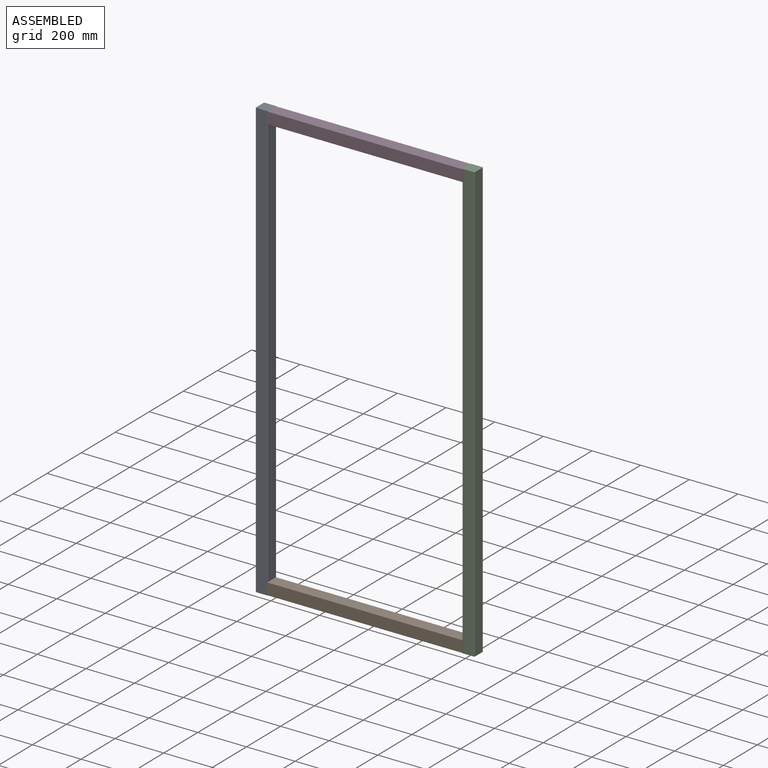
[diagram: assembled view]
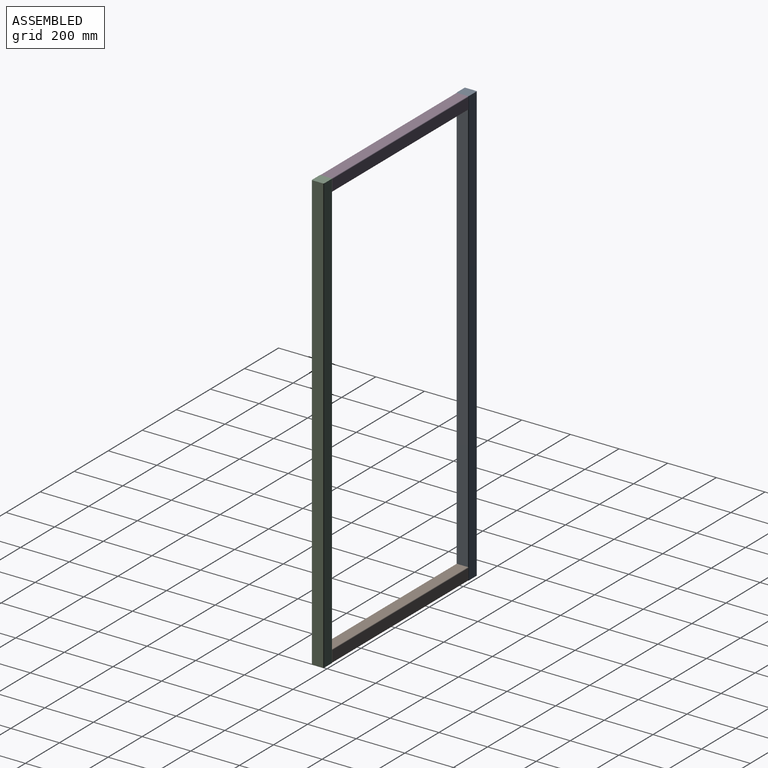
[diagram: assembled view, second angle]
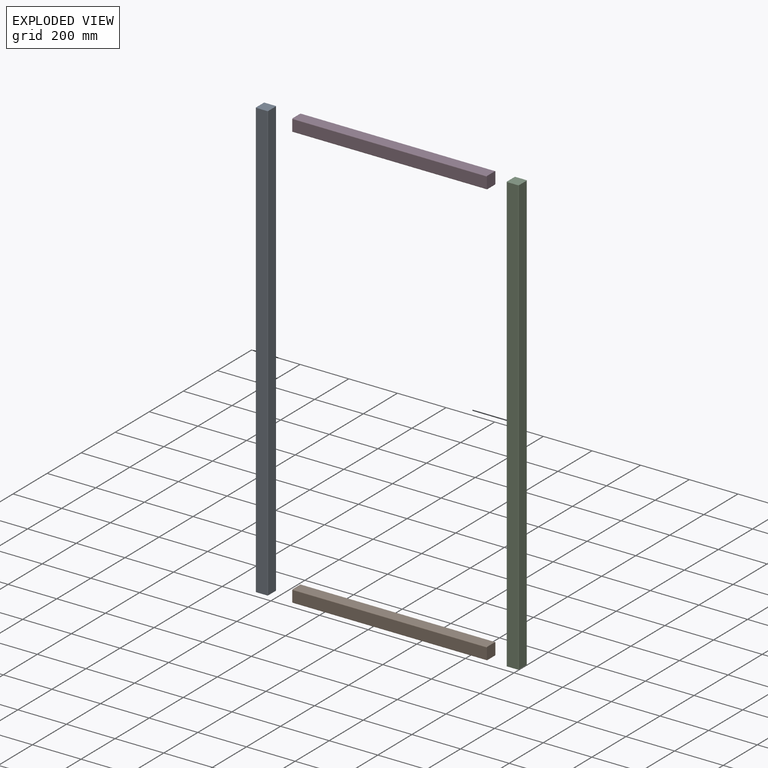
[diagram: exploded view]
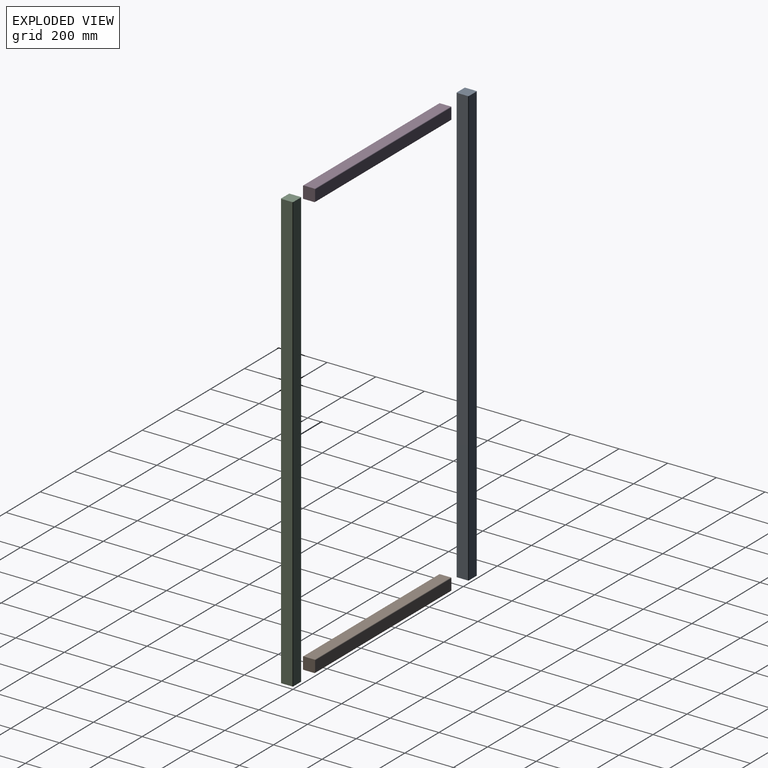
[diagram: exploded view, second angle]
ASSEMBLY  parts=4 mates=3
PART A: 10 faces, bbox 50x50x1800 mm
  f0: plane 50x50mm, normal (0,0,1), area 2494.6mm2, adj f1,f3,f4,f5,f6,f7,f8,f9
  f1: plane 1800x45mm, normal (-1,0,0), area 81000mm2, adj f0,f2,f6,f8
  f2: plane 50x50mm, normal (0,0,-1), area 2494.6mm2, adj f1,f3,f4,f5,f6,f7,f8,f9
  f3: plane 1800x45mm, normal (1,0,0), area 81000mm2, adj f0,f2,f7,f9
  f4: plane 1800x45mm, normal (0,-1,0), area 81000mm2, adj f0,f2,f8,f9
  f5: plane 1800x45mm, normal (0,1,0), area 81000mm2, adj f0,f2,f6,f7
  f6: cylinder r=2.5mm len=1800mm, axis (0,0,-1), area 7068.6mm2, adj f0,f1,f2,f5
  f7: cylinder r=2.5mm len=1800mm, axis (0,0,1), area 7068.6mm2, adj f0,f2,f3,f5
  f8: cylinder r=2.5mm len=1800mm, axis (0,0,1), area 7068.6mm2, adj f0,f1,f2,f4
  f9: cylinder r=2.5mm len=1800mm, axis (0,0,-1), area 7068.6mm2, adj f0,f2,f3,f4
PART B: 10 faces, bbox 800x50x50 mm
  f0: plane 800x45mm, normal (0,0,1), area 36000mm2, adj f1,f3,f7,f9
  f1: plane 50x50mm, normal (-1,0,0), area 2494.6mm2, adj f0,f2,f4,f5,f6,f7,f8,f9
  f2: plane 800x45mm, normal (0,0,-1), area 36000mm2, adj f1,f3,f6,f8
  f3: plane 50x50mm, normal (1,0,0), area 2494.6mm2, adj f0,f2,f4,f5,f6,f7,f8,f9
  f4: plane 800x45mm, normal (0,-1,0), area 36000mm2, adj f1,f3,f8,f9
  f5: plane 800x45mm, normal (0,1,0), area 36000mm2, adj f1,f3,f6,f7
  f6: cylinder r=2.5mm len=800mm, axis (1,0,0), area 3141.6mm2, adj f1,f2,f3,f5
  f7: cylinder r=2.5mm len=800mm, axis (-1,0,0), area 3141.6mm2, adj f0,f1,f3,f5
  f8: cylinder r=2.5mm len=800mm, axis (-1,0,0), area 3141.6mm2, adj f1,f2,f3,f4
  f9: cylinder r=2.5mm len=800mm, axis (1,0,0), area 3141.6mm2, adj f0,f1,f3,f4
PART C: same geometry as A
PART D: same geometry as B
PLACE A t=(-420.09,25,-52.57)mm
PLACE B t=(4.91,25,-927.57)mm
PLACE C t=(429.91,25,-52.57)mm
PLACE D t=(4.91,25,822.43)mm
MATE fastened D.f3 <-> C.f1  axis (1,0,0) through (404.91,0,847.43)mm
MATE fastened B.f1 <-> A.f3  axis (-1,0,0) through (-395.09,0,-952.57)mm
MATE fastened D.f1 <-> A.f3  axis (-1,0,0) through (-395.09,0,847.43)mm
